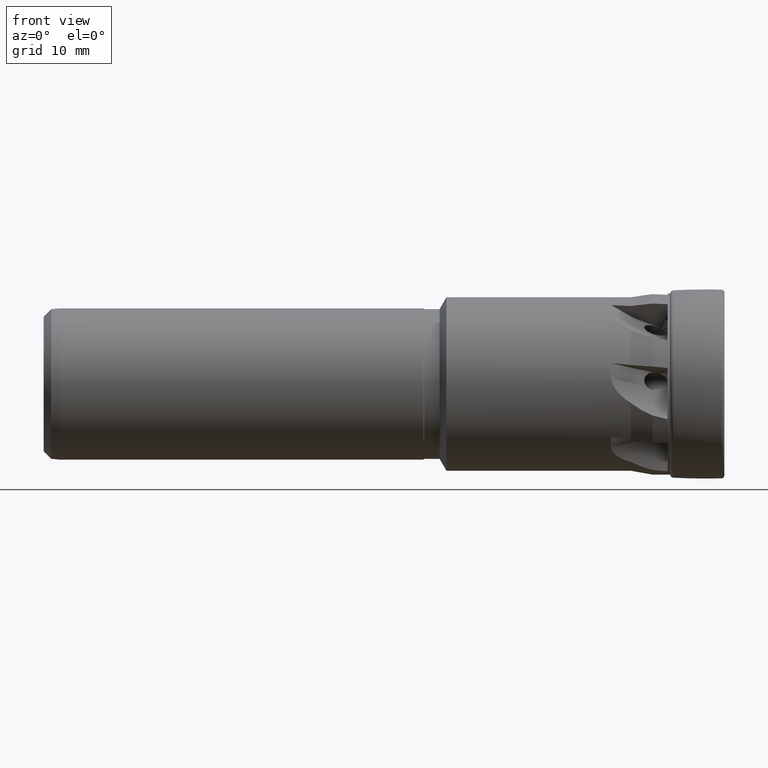
[diagram: clean part render]
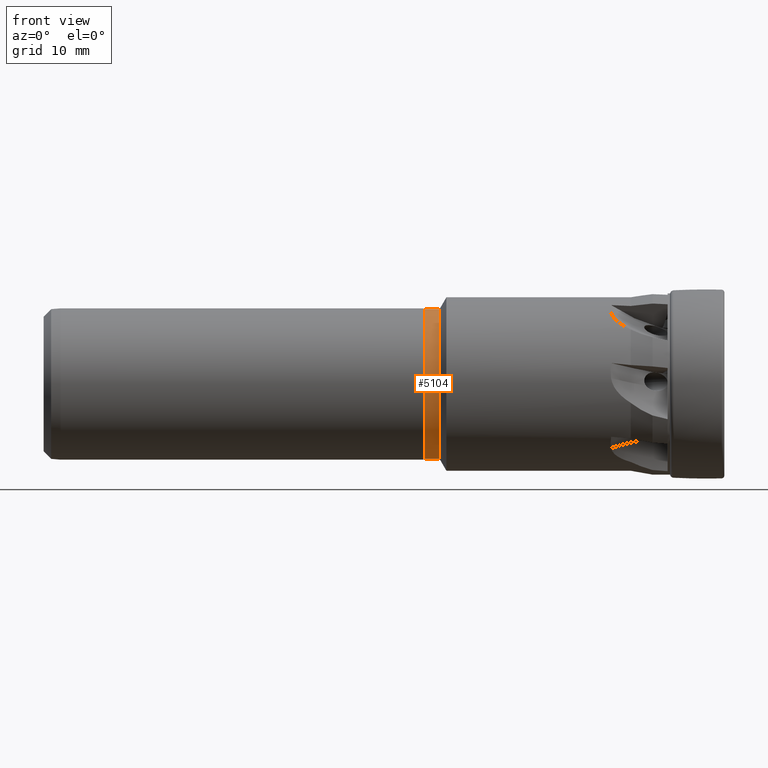
[diagram: same view with one face highlighted and labeled with its STEP entity id]
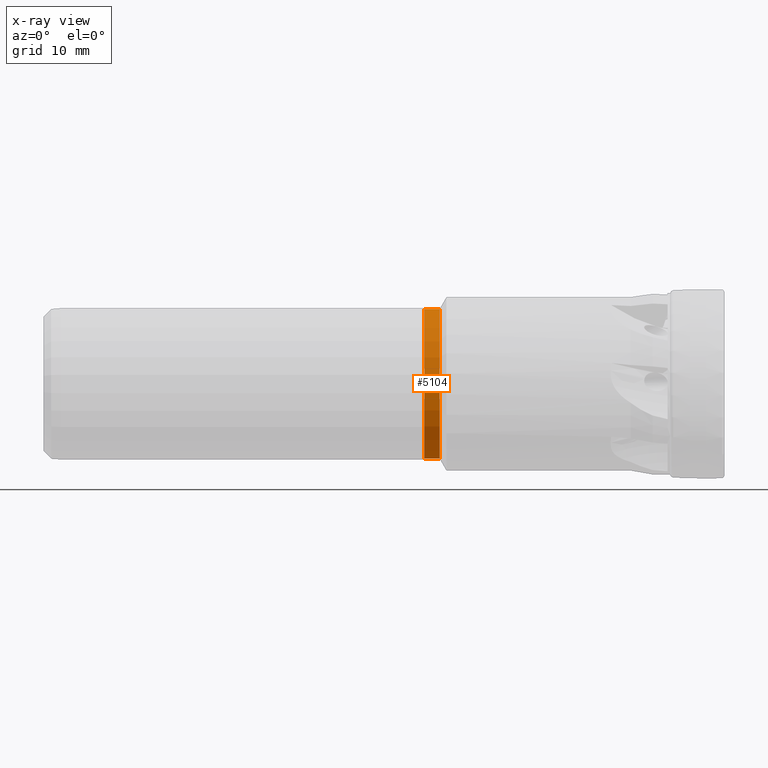
[diagram: x-ray of the same camera — body ghosted, the highlighted face saturated]
A machine part, front view. The second image highlights one B-rep face of the part: STEP entity #5104.
The next image is the same camera in x-ray: the body ghosted, the highlighted face saturated — about 0% of this face is hidden behind the body in this view.
In plain terms, the highlighted cylindrical surface (partial cylindrical patch) has radius 9.9 mm, axis along (1, -0, -0).
Its self-contained STEP definition (entity closure, byte-faithful):
#171 = CARTESIAN_POINT ( 'NONE',  ( -39.15358983848621900, 1.212400331155879100E-015, 9.899999999999995000 ) ) ;
#394 = CARTESIAN_POINT ( 'NONE',  ( -39.15358983848621900, 0.0000000000000000000, -9.899999999999995000 ) ) ;
#395 = CARTESIAN_POINT ( 'NONE',  ( -37.15358983848621900, 0.0000000000000000000, -9.899999999999996800 ) ) ;
#486 = LINE ( 'NONE', #492, #6093 ) ;
#492 = CARTESIAN_POINT ( 'NONE',  ( 0.0000000000000000000, 0.0000000000000000000, -9.899999999999995000 ) ) ;
#500 = DIRECTION ( 'NONE',  ( 1.000000000000000000, -0.0000000000000000000, -0.0000000000000000000 ) ) ;
#689 = LINE ( 'NONE', #690, #5148 ) ;
#690 = CARTESIAN_POINT ( 'NONE',  ( 0.0000000000000000000, 1.212400331155879100E-015, 9.899999999999995000 ) ) ;
#691 = DIRECTION ( 'NONE',  ( 1.000000000000000000, -0.0000000000000000000, -0.0000000000000000000 ) ) ;
#1248 = CARTESIAN_POINT ( 'NONE',  ( -37.15358983848621900, 0.0000000000000000000, 0.0000000000000000000 ) ) ;
#1249 = DIRECTION ( 'NONE',  ( 1.000000000000000000, -0.0000000000000000000, -0.0000000000000000000 ) ) ;
#1250 = DIRECTION ( 'NONE',  ( 0.0000000000000000000, 0.0000000000000000000, -1.000000000000000000 ) ) ;
#1325 = CARTESIAN_POINT ( 'NONE',  ( -37.15358983848621900, 1.308535104888946800E-015, 9.899999999999996800 ) ) ;
#2033 = CARTESIAN_POINT ( 'NONE',  ( -39.15358983848621900, 0.0000000000000000000, 0.0000000000000000000 ) ) ;
#2034 = DIRECTION ( 'NONE',  ( 1.000000000000000000, -0.0000000000000000000, -0.0000000000000000000 ) ) ;
#2035 = DIRECTION ( 'NONE',  ( 0.0000000000000000000, 0.0000000000000000000, -1.000000000000000000 ) ) ;
#2507 = CARTESIAN_POINT ( 'NONE',  ( 0.0000000000000000000, 0.0000000000000000000, 0.0000000000000000000 ) ) ;
#2510 = DIRECTION ( 'NONE',  ( 1.000000000000000000, -0.0000000000000000000, -0.0000000000000000000 ) ) ;
#2513 = CYLINDRICAL_SURFACE ( 'NONE', #4674, 9.899999999999995000 ) ;
#2514 = FACE_OUTER_BOUND ( 'NONE', #3146, .T. ) ;
#2516 = DIRECTION ( 'NONE',  ( 0.0000000000000000000, 0.0000000000000000000, -1.000000000000000000 ) ) ;
#3146 = EDGE_LOOP ( 'NONE', ( #6150, #6152, #6154, #6151 ) ) ;
#3458 = EDGE_CURVE ( 'NONE', #3622, #3887, #3610, .T. ) ;
#3541 = AXIS2_PLACEMENT_3D ( 'NONE', #1248, #1249, #1250 ) ;
#3610 = CIRCLE ( 'NONE', #3541, 9.899999999999996800 ) ;
#3622 = VERTEX_POINT ( 'NONE', #1325 ) ;
#3638 = VERTEX_POINT ( 'NONE', #171 ) ;
#3886 = VERTEX_POINT ( 'NONE', #394 ) ;
#3887 = VERTEX_POINT ( 'NONE', #395 ) ;
#3947 = EDGE_CURVE ( 'NONE', #3886, #3887, #486, .T. ) ;
#3985 = EDGE_CURVE ( 'NONE', #3638, #3622, #689, .T. ) ;
#4555 = CIRCLE ( 'NONE', #4573, 9.899999999999995000 ) ;
#4573 = AXIS2_PLACEMENT_3D ( 'NONE', #2033, #2034, #2035 ) ;
#4674 = AXIS2_PLACEMENT_3D ( 'NONE', #2507, #2510, #2516 ) ;
#4842 = EDGE_CURVE ( 'NONE', #3638, #3886, #4555, .T. ) ;
#5104 = ADVANCED_FACE ( 'NONE', ( #2514 ), #2513, .T. ) ;
#5148 = VECTOR ( 'NONE', #691, 1000.000000000000000 ) ;
#6093 = VECTOR ( 'NONE', #500, 1000.000000000000000 ) ;
#6150 = ORIENTED_EDGE ( 'NONE', *, *, #3985, .F. ) ;
#6151 = ORIENTED_EDGE ( 'NONE', *, *, #3458, .F. ) ;
#6152 = ORIENTED_EDGE ( 'NONE', *, *, #4842, .T. ) ;
#6154 = ORIENTED_EDGE ( 'NONE', *, *, #3947, .T. ) ;